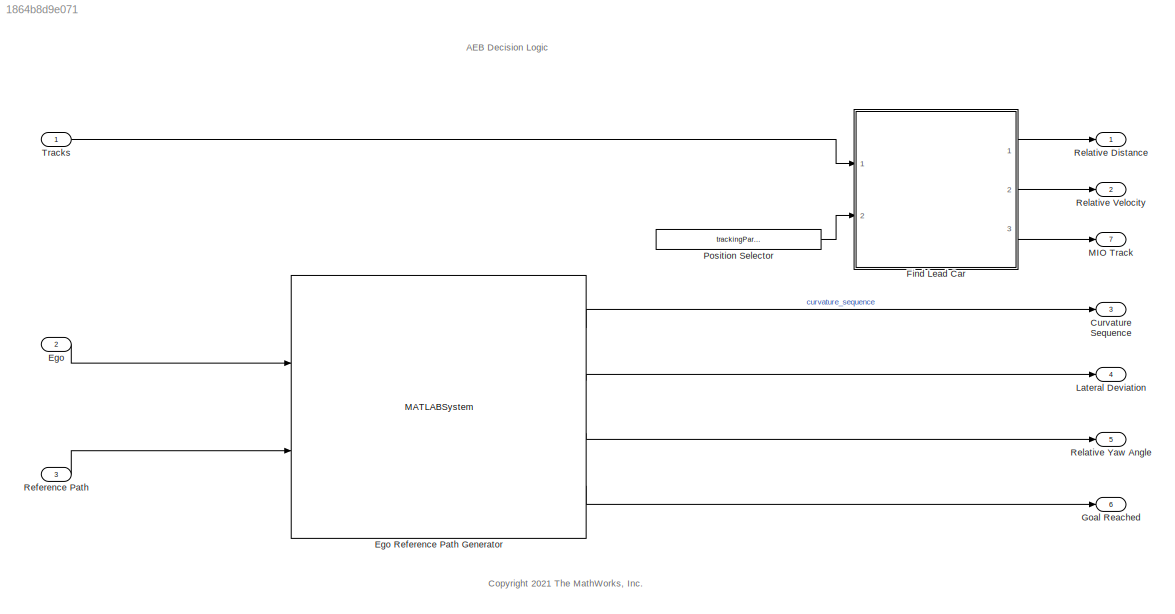
MODEL slx_1864b8d9e071
KIND model
CONFIG AbsTol = auto
CONFIG EnableMultiTasking = off
CONFIG FixedStep = 0.05
CONFIG MaxStep = auto
CONFIG MinStep = auto
CONFIG RelTol = 1e-3
CONFIG SampleTimeConstraint = Unconstrained
CONFIG SolverName = FixedStepAuto
CONFIG StartTime = 0.0
CONFIG StopTime = scenario.StopTime
BLOCK [Outport] Curvature Sequence
  Port = 3
BLOCK [Inport] Ego
  OutDataTypeStr = Bus: BusVehiclePose
  Port = 2
BLOCK [MATLABSystem] Ego Reference Path Generator
  DistanceFromCGToRear = lr
  MaskDisplay = disp('HelperCalculateReferencePose');\nport_label('input',1,'EgoActor');\nport_label('input',2,'EgoReferencePath');\nport_label('output',1,'CurvatureSequence');\nport_label('output',2,'LateralDeviation');\nport_label('output',3,'RelativeYawAngle');\nport_label('output',4,'IsGoalReached');
  MaskType = HelperCalculateReferencePose
  Ports = [2, 4]
  PredictionHorizon = predictionHorizon
  SimulateUsing = Interpreted execution
  System = HelperCalculateReferencePose
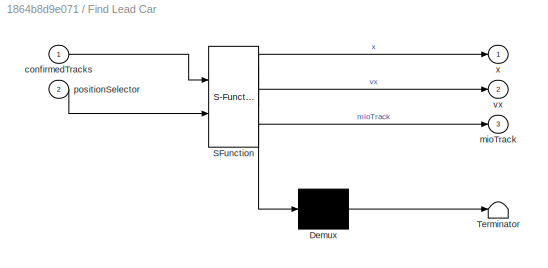
BLOCK [SubSystem] Find Lead Car
  ErrorFcn = Stateflow.Translate.translate
  PermitHierarchicalResolution = ExplicitOnly
  Ports = [2, 3]
  RequestExecContextInheritance = off
  SFBlockType = MATLAB Function
  TreatAsAtomicUnit = on
BLOCK [Demux] Find Lead Car/ Demux 
  Outputs = 1
  Ports = [1, 1]
BLOCK [S-Function] Find Lead Car/ SFunction 
  EnableBusSupport = off
  FunctionName = sf_sfun
  PortCounts = [2 4]
  Ports = [2, 4]
  SFcnIsStateOwnerBlock = off
  SFunctionDeploymentMode = off
  Tag = Stateflow S-Function 1
BLOCK [Terminator] Find Lead Car/ Terminator 
BLOCK [Inport] Find Lead Car/confirmedTracks
BLOCK [Outport] Find Lead Car/mioTrack
  Port = 3
  VectorParamsAs1DForOutWhenUnconnected = off
BLOCK [Inport] Find Lead Car/positionSelector
  Port = 2
BLOCK [Outport] Find Lead Car/vx
  Port = 2
  VectorParamsAs1DForOutWhenUnconnected = off
BLOCK [Outport] Find Lead Car/x
  VectorParamsAs1DForOutWhenUnconnected = off
BLOCK [Outport] Goal Reached
  Port = 6
BLOCK [Outport] Lateral Deviation
  Port = 4
BLOCK [Outport] MIO Track
  Port = 7
BLOCK [Constant] Position Selector
  Value = trackingParams.posSelector
BLOCK [Inport] Reference Path
  OutDataTypeStr = Bus: BusEgoRefPath
  Port = 3
BLOCK [Outport] Relative Distance
BLOCK [Outport] Relative Velocity
  Port = 2
BLOCK [Outport] Relative Yaw Angle
  Port = 5
BLOCK [Inport] Tracks
  BusOutputAsStruct = on
  OutDataTypeStr = Bus: BusMultiObjectTracker1
  SampleTime = [Ts, 0]
ANNOTATION (root): AEB Decision Logic
ANNOTATION (root): <copyright redacted>
LINE Ego Reference Path Generator:1 -> Curvature Sequence:1
LINE Ego Reference Path Generator:2 -> Lateral Deviation:1
LINE Ego Reference Path Generator:3 -> Relative Yaw Angle:1
LINE Ego Reference Path Generator:4 -> Goal Reached:1
LINE Ego:1 -> Ego Reference Path Generator:1
LINE Find Lead Car:1 -> Relative Distance:1
LINE Find Lead Car:2 -> Relative Velocity:1
LINE Find Lead Car:3 -> MIO Track:1
LINE Position Selector:1 -> Find Lead Car:2
LINE Reference Path:1 -> Ego Reference Path Generator:2
LINE Tracks:1 -> Find Lead Car:1
CHART Find Lead Car states=1 transitions=1
  STATE_LABEL 'eML_blk_kernel()'
  STATE_LABEL "SCRIPT:\nfunction [x,vx,mioTrack] = findLeadCar(confirmedTracks, positionSelector)\n% This function finds the lead car: a car in front of the ego car that\n% satisfies all the criteria below:\n% * Within the ego car's lane.\n% * In front of the ego car.\n% * Closest to the ego car.\n\n% Important notes:\n% 1. If you change state definition, change the following:\n%       State = [x;vx;y;vy;z;vz] (3D constan...<+1732ch>"
CHART  states=0 transitions=0
